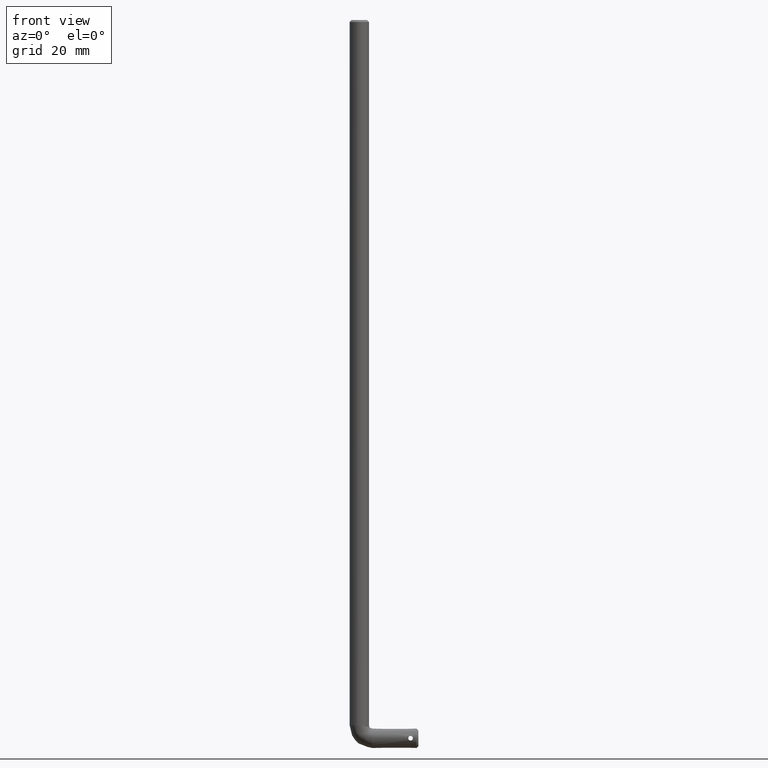
[diagram: clean part render]
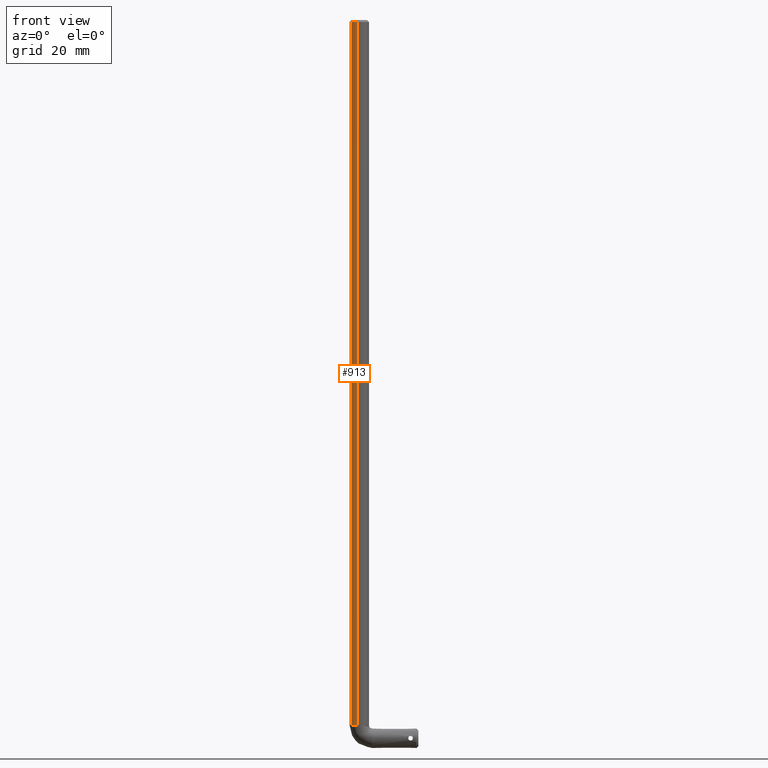
[diagram: same view with one face highlighted and labeled with its STEP entity id]
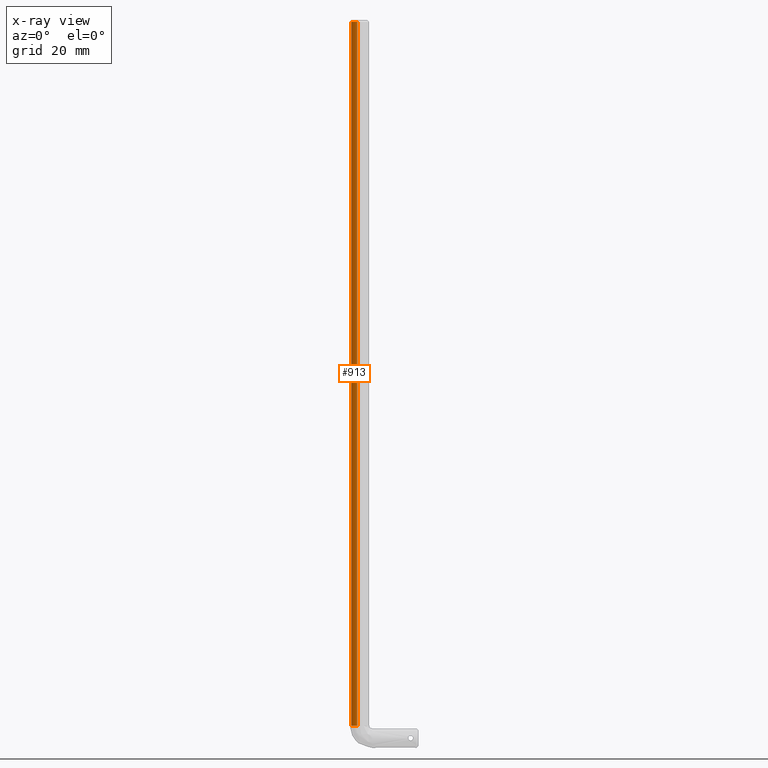
[diagram: x-ray of the same camera — body ghosted, the highlighted face saturated]
A machine part, front view. The second image highlights one B-rep face of the part: STEP entity #913.
The next image is the same camera in x-ray: the body ghosted, the highlighted face saturated — about 0% of this face is hidden behind the body in this view.
In plain terms, the highlighted face is a freeform B-spline surface patch.
Its self-contained STEP definition (entity closure, byte-faithful):
#182=CARTESIAN_POINT('',(-2.062822166249766,-1.412361395121172,-0.499999999999993));
#183=VERTEX_POINT('',#182);
#197=CARTESIAN_POINT('',(-0.541099035157201,-2.440740017730677,-0.499999999999994));
#198=VERTEX_POINT('',#197);
#199=CARTESIAN_POINT('',(-0.541099035157201,-2.440740017730677,-0.499999999999994));
#200=CARTESIAN_POINT('',(-1.505031759573760,-2.227041277322153,-0.500000000000000));
#201=CARTESIAN_POINT('',(-2.062822166249766,-1.412361395121172,-0.499999999999993));
#209=(BOUNDED_CURVE()B_SPLINE_CURVE(2,(#199,#200,#201),.UNSPECIFIED.,.F.,.U.)B_SPLINE_CURVE_WITH_KNOTS((3,3),(0.787040114712346,0.902999117471549),.UNSPECIFIED.)CURVE()GEOMETRIC_REPRESENTATION_ITEM()RATIONAL_B_SPLINE_CURVE((0.926068516232358,0.830470601039911,0.860901032466181))REPRESENTATION_ITEM(''));
#210=EDGE_CURVE('',#198,#183,#209,.T.);
#784=CARTESIAN_POINT('',(-2.062822166243914,-1.412361395129719,-181.699999999999990));
#785=VERTEX_POINT('',#784);
#799=CARTESIAN_POINT('',(-2.062822166249766,-1.412361395121172,-0.499999999999993));
#800=CARTESIAN_POINT('',(-2.062822166243914,-1.412361395129719,-181.699999999999990));
#801=QUASI_UNIFORM_CURVE('',1,(#799,#800),.UNSPECIFIED.,.F.,.U.);
#802=EDGE_CURVE('',#183,#785,#801,.T.);
#809=CARTESIAN_POINT('',(-0.541099253055557,-2.440739969423754,-181.699999999999990));
#810=VERTEX_POINT('',#809);
#811=CARTESIAN_POINT('',(-0.541099035157201,-2.440740017730677,-0.499999999999994));
#812=CARTESIAN_POINT('',(-0.541099253055557,-2.440739969423754,-181.699999999999990));
#813=QUASI_UNIFORM_CURVE('',1,(#811,#812),.UNSPECIFIED.,.F.,.U.);
#814=EDGE_CURVE('',#198,#810,#813,.T.);
#881=CARTESIAN_POINT('',(-0.541099034845257,-2.440740017799833,4.030000000176347));
#882=CARTESIAN_POINT('',(-1.505031759376755,-2.227041277624332,4.030000000176348));
#883=CARTESIAN_POINT('',(-2.062822166255599,-1.412361395112651,4.030000000176347));
#884=CARTESIAN_POINT('',(-0.541099034845257,-2.440740017799833,-186.343250007234500));
#885=CARTESIAN_POINT('',(-1.505031759376755,-2.227041277624332,-186.343250007234530));
#886=CARTESIAN_POINT('',(-2.062822166255599,-1.412361395112651,-186.343250007234470));
#894=(BOUNDED_SURFACE()B_SPLINE_SURFACE(2,1,((#881,#884),(#882,#885),(#883,#886)),.UNSPECIFIED.,.F.,.F.,.U.)B_SPLINE_SURFACE_WITH_KNOTS((3,3),(2,2),(0.0,1.987679448385988),(0.0,190.373250007410800),.UNSPECIFIED.)GEOMETRIC_REPRESENTATION_ITEM()RATIONAL_B_SPLINE_SURFACE(((1.0,1.0),(0.859411254969543,0.859411254969543),(0.853787705168325,0.853787705168325)))REPRESENTATION_ITEM('')SURFACE());
#895=CARTESIAN_POINT('',(-2.062822166243914,-1.412361395129719,-181.699999999999960));
#896=CARTESIAN_POINT('',(-1.505031905317956,-2.227041064441226,-181.699999999999960));
#897=CARTESIAN_POINT('',(-0.541099253055557,-2.440739969423754,-181.699999999999960));
#905=(BOUNDED_CURVE()B_SPLINE_CURVE(2,(#895,#896,#897),.UNSPECIFIED.,.F.,.U.)B_SPLINE_CURVE_WITH_KNOTS((3,3),(0.097000882529711,0.212959856057536),.UNSPECIFIED.)CURVE()GEOMETRIC_REPRESENTATION_ITEM()RATIONAL_B_SPLINE_CURVE((0.860901032465519,0.830470608711636,0.926068468037087))REPRESENTATION_ITEM(''));
#906=EDGE_CURVE('',#785,#810,#905,.T.);
#907=ORIENTED_EDGE('',*,*,#906,.T.);
#908=ORIENTED_EDGE('',*,*,#814,.F.);
#909=ORIENTED_EDGE('',*,*,#210,.T.);
#910=ORIENTED_EDGE('',*,*,#802,.T.);
#911=EDGE_LOOP('',(#907,#908,#909,#910));
#912=FACE_OUTER_BOUND('',#911,.T.);
#913=ADVANCED_FACE('',(#912),#894,.T.);